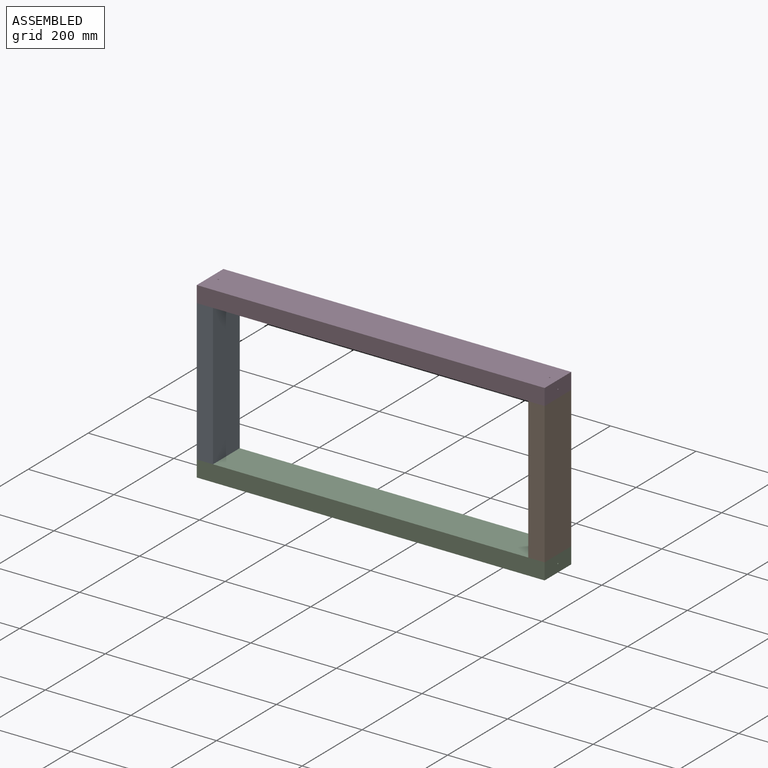
[diagram: assembled view]
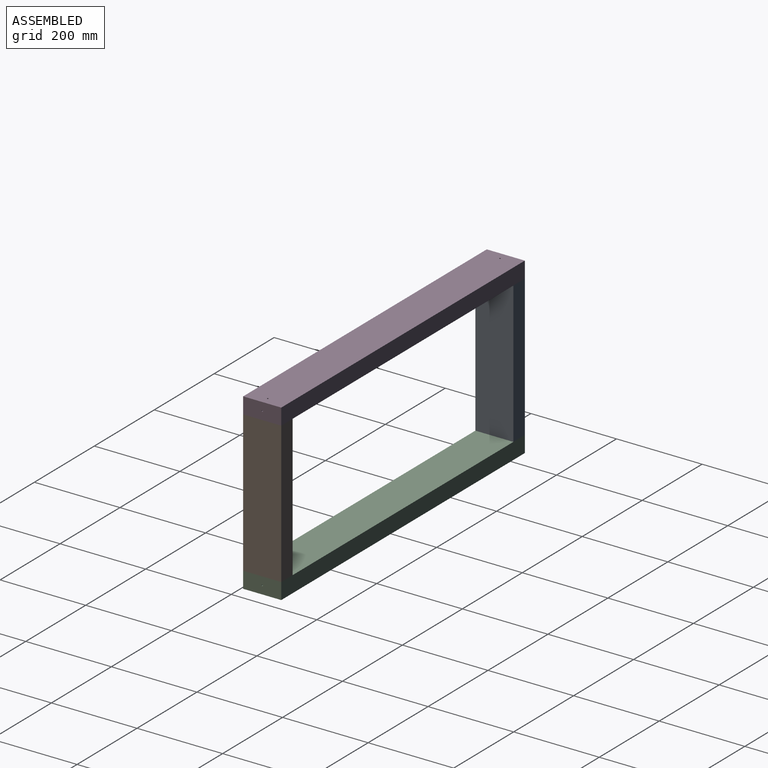
[diagram: assembled view, second angle]
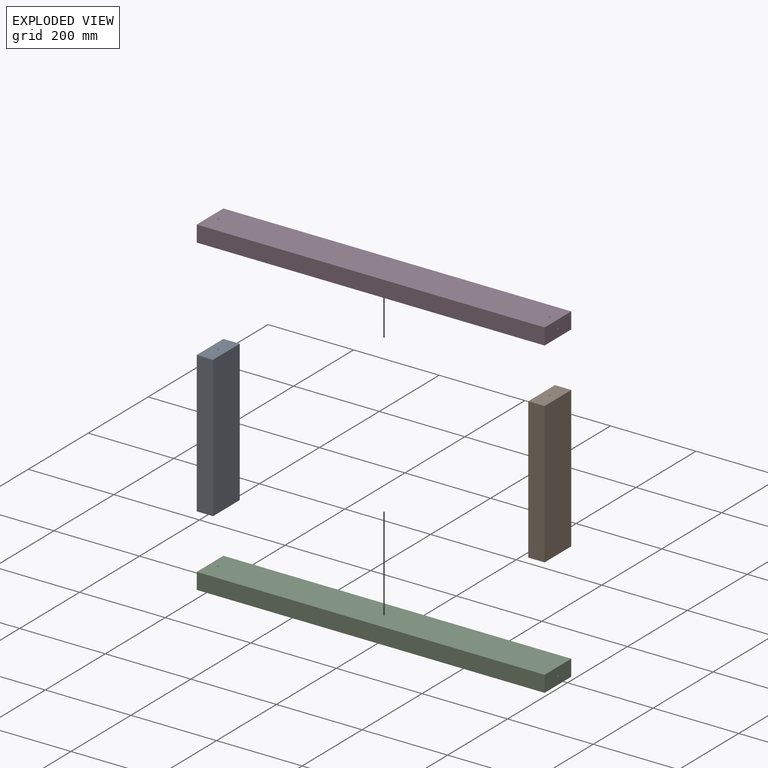
[diagram: exploded view]
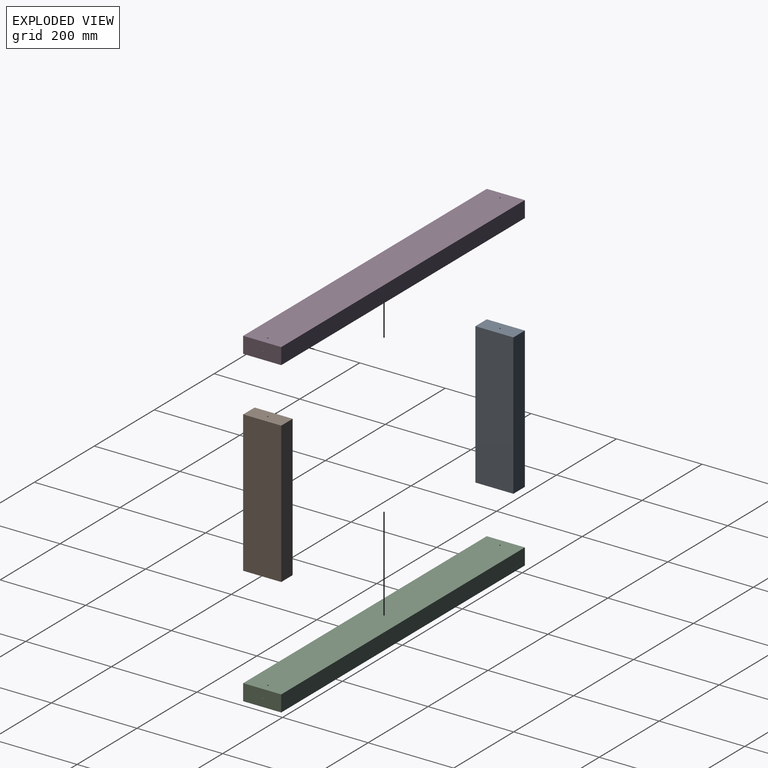
[diagram: exploded view, second angle]
ASSEMBLY  parts=4 mates=3
PART A: 7 faces, bbox 330.2x88.9x38.1 mm
  f0: plane 88.9x38.1mm, normal (1,0,0), area 3379.2mm2, adj f1,f3,f4,f5,f6
  f1: plane 330.2x88.9mm, normal (0,0,1), area 29354.8mm2, adj f0,f2,f4,f5
  f2: plane 88.9x38.1mm, normal (-1,0,0), area 3379.2mm2, adj f1,f3,f4,f5,f6
  f3: plane 330.2x88.9mm, normal (0,0,-1), area 29354.8mm2, adj f0,f2,f4,f5
  f4: plane 330.2x38.1mm, normal (0,-1,0), area 12580.6mm2, adj f0,f1,f2,f3
  f5: plane 330.2x38.1mm, normal (0,1,0), area 12580.6mm2, adj f0,f1,f2,f3
  f6: cylinder r=1.59mm len=330.2mm, axis (1,0,0), area 3293.6mm2, adj f0,f2
PART B: same geometry as A
PART C: 13 faces, bbox 812.8x88.9x38.1 mm
  f0: plane 812.8x88.9mm, normal (0,0,1), area 72242.1mm2, adj f4,f5,f6,f7,f9,f10
  f1: plane 812.8x88.9mm, normal (0,0,-1), area 72242.1mm2, adj f4,f5,f6,f7,f8,f11
  f2: cylinder r=1.59mm len=19.05mm, axis (1,0,0), area 179.9mm2, adj f5,f10,f11
  f3: cylinder r=1.59mm len=19.05mm, axis (1,0,0), area 179.9mm2, adj f4,f8,f9
  f4: plane 88.9x38.1mm, normal (1,0,0), area 3379.2mm2, adj f0,f1,f3,f6,f7
  f5: plane 88.9x38.1mm, normal (-1,0,0), area 3379.2mm2, adj f0,f1,f2,f6,f7
  f6: plane 812.8x38.1mm, normal (0,-1,0), area 30967.7mm2, adj f0,f1,f4,f5
  f7: plane 812.8x38.1mm, normal (0,1,0), area 30967.7mm2, adj f0,f1,f4,f5
  f8: cylinder r=1.59mm len=19.05mm, axis (0,0,1), area 179.9mm2, adj f1,f3,f12
  f9: cylinder r=1.59mm len=19.05mm, axis (0,0,1), area 179.9mm2, adj f0,f3,f12
  f10: cylinder r=1.59mm len=19.05mm, axis (0,0,1), area 179.9mm2, adj f0,f2,f12
  f11: cylinder r=1.59mm len=19.05mm, axis (0,0,1), area 179.9mm2, adj f1,f2,f12
  f12: cylinder r=1.59mm len=774.7mm, axis (1,0,0), area 7707.1mm2, adj f8,f9,f10,f11
PART D: same geometry as C
PLACE A rot(axis=(0,1,0),90deg) t=(-386.47,-397.84,163.84)mm
PLACE B rot(axis=(0,1,0),90deg) t=(388.23,-397.84,163.84)mm
PLACE C t=(0.88,-397.84,-20.31)mm
PLACE D t=(0.88,-397.84,347.99)mm
MATE fastened B.f6 <-> D.f8  axis (0,0,1) through (388.23,-442.29,328.94)mm
MATE fastened D.f10 <-> A.f6  axis (0,0,-1) through (-386.47,-442.29,328.94)mm
MATE fastened A.f6 <-> C.f10  axis (0,0,-1) through (-386.47,-442.29,-1.26)mm
